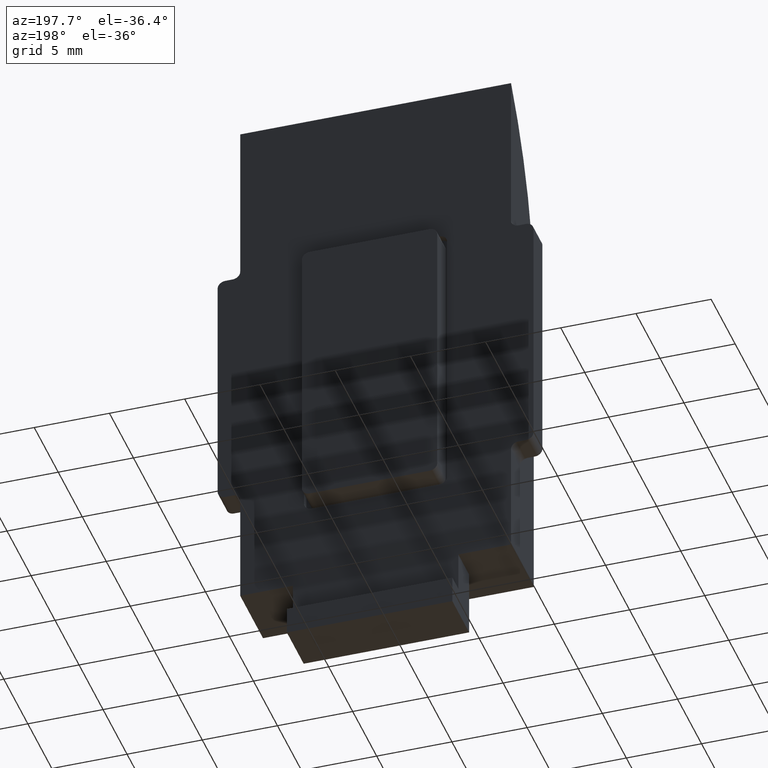
[diagram: clean part render]
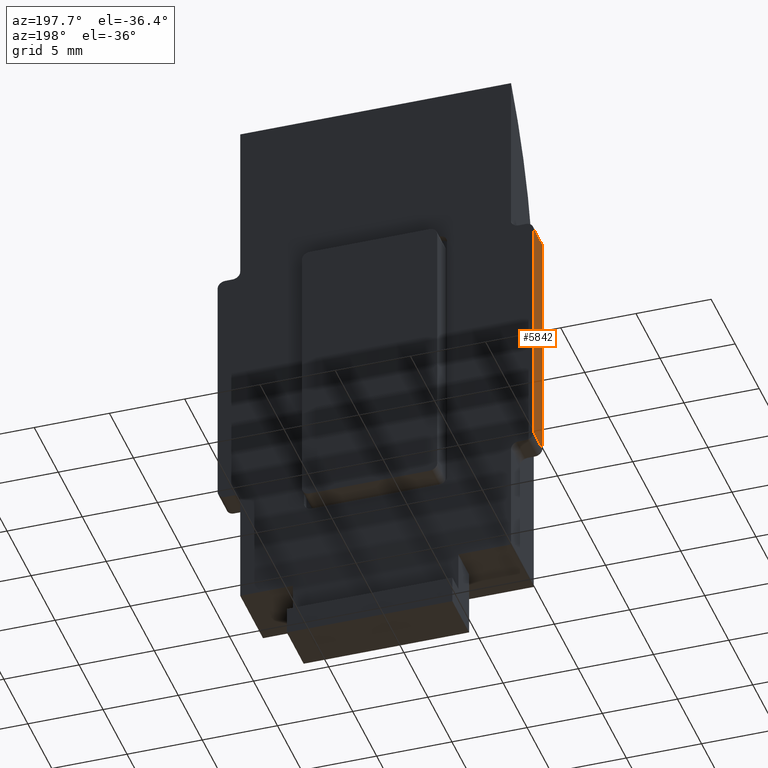
[diagram: same view with one face highlighted and labeled with its STEP entity id]
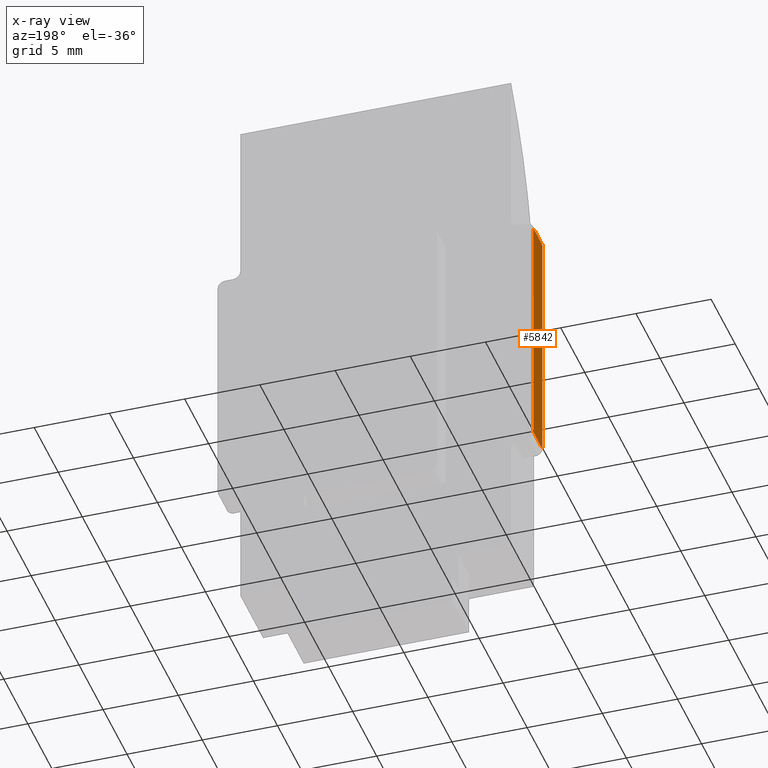
[diagram: x-ray of the same camera — body ghosted, the highlighted face saturated]
A machine part, auxiliary view. The second image highlights one B-rep face of the part: STEP entity #5842.
The next image is the same camera in x-ray: the body ghosted, the highlighted face saturated — about 0% of this face is hidden behind the body in this view.
In plain terms, the highlighted planar face has unit normal (1, 0, 0).
Its self-contained STEP definition (entity closure, byte-faithful):
#456 = DIRECTION ( 'NONE',  ( -0.000000000000000000, -1.000000000000000000, 0.000000000000000000 ) ) ;
#1086 = PLANE ( 'NONE',  #2670 ) ;
#1307 = DIRECTION ( 'NONE',  ( 1.000000000000000000, 0.000000000000000000, -0.000000000000000000 ) ) ;
#1547 = CARTESIAN_POINT ( 'NONE',  ( -10.49999999999999822, 4.749999999999995559, 24.49999999999997513 ) ) ;
#2296 = CARTESIAN_POINT ( 'NONE',  ( -10.49999999999999822, 4.749999999999995559, 8.499999999999976907 ) ) ;
#2438 = LINE ( 'NONE', #13627, #14820 ) ;
#2493 = DIRECTION ( 'NONE',  ( 0.000000000000000000, 0.000000000000000000, 1.000000000000000000 ) ) ;
#2647 = CARTESIAN_POINT ( 'NONE',  ( -10.49999999999999822, 2.899999999999986589, 24.49999999999997513 ) ) ;
#2670 = AXIS2_PLACEMENT_3D ( 'NONE', #13468, #1307, #17684 ) ;
#3156 = ORIENTED_EDGE ( 'NONE', *, *, #15610, .T. ) ;
#3702 = CARTESIAN_POINT ( 'NONE',  ( -10.49999999999999822, 2.899999999999988365, 7.999999999999976019 ) ) ;
#3947 = LINE ( 'NONE', #16999, #13377 ) ;
#4821 = LINE ( 'NONE', #10701, #11032 ) ;
#5445 = EDGE_CURVE ( 'NONE', #11304, #14753, #2438, .T. ) ;
#5842 = ADVANCED_FACE ( 'NONE', ( #7470 ), #1086, .F. ) ;
#7470 = FACE_OUTER_BOUND ( 'NONE', #7783, .T. ) ;
#7694 = VERTEX_POINT ( 'NONE', #2647 ) ;
#7783 = EDGE_LOOP ( 'NONE', ( #10996, #3156, #12175, #17656 ) ) ;
#7954 = EDGE_CURVE ( 'NONE', #7694, #11273, #8041, .T. ) ;
#8041 = LINE ( 'NONE', #3702, #14025 ) ;
#10701 = CARTESIAN_POINT ( 'NONE',  ( -10.49999999999999822, 4.749999999999995559, 24.49999999999997513 ) ) ;
#10996 = ORIENTED_EDGE ( 'NONE', *, *, #7954, .F. ) ;
#11032 = VECTOR ( 'NONE', #16139, 1000.000000000000000 ) ;
#11273 = VERTEX_POINT ( 'NONE', #14539 ) ;
#11304 = VERTEX_POINT ( 'NONE', #2296 ) ;
#12175 = ORIENTED_EDGE ( 'NONE', *, *, #5445, .F. ) ;
#13377 = VECTOR ( 'NONE', #456, 1000.000000000000000 ) ;
#13468 = CARTESIAN_POINT ( 'NONE',  ( -10.49999999999999822, 0.000000000000000000, 0.000000000000000000 ) ) ;
#13627 = CARTESIAN_POINT ( 'NONE',  ( -10.49999999999999822, 4.749999999999995559, 24.99999999999997868 ) ) ;
#14025 = VECTOR ( 'NONE', #15914, 1000.000000000000000 ) ;
#14539 = CARTESIAN_POINT ( 'NONE',  ( -10.49999999999999822, 2.899999999999988365, 8.499999999999976907 ) ) ;
#14753 = VERTEX_POINT ( 'NONE', #1547 ) ;
#14820 = VECTOR ( 'NONE', #2493, 1000.000000000000000 ) ;
#15363 = EDGE_CURVE ( 'NONE', #11304, #11273, #3947, .T. ) ;
#15610 = EDGE_CURVE ( 'NONE', #7694, #14753, #4821, .T. ) ;
#15914 = DIRECTION ( 'NONE',  ( 0.000000000000000000, 1.530638361156006245E-16, -1.000000000000000000 ) ) ;
#16139 = DIRECTION ( 'NONE',  ( -0.000000000000000000, 1.000000000000000000, -0.000000000000000000 ) ) ;
#16999 = CARTESIAN_POINT ( 'NONE',  ( -10.49999999999999822, 2.899999999999988365, 8.499999999999976907 ) ) ;
#17656 = ORIENTED_EDGE ( 'NONE', *, *, #15363, .T. ) ;
#17684 = DIRECTION ( 'NONE',  ( 0.000000000000000000, 0.000000000000000000, 1.000000000000000000 ) ) ;